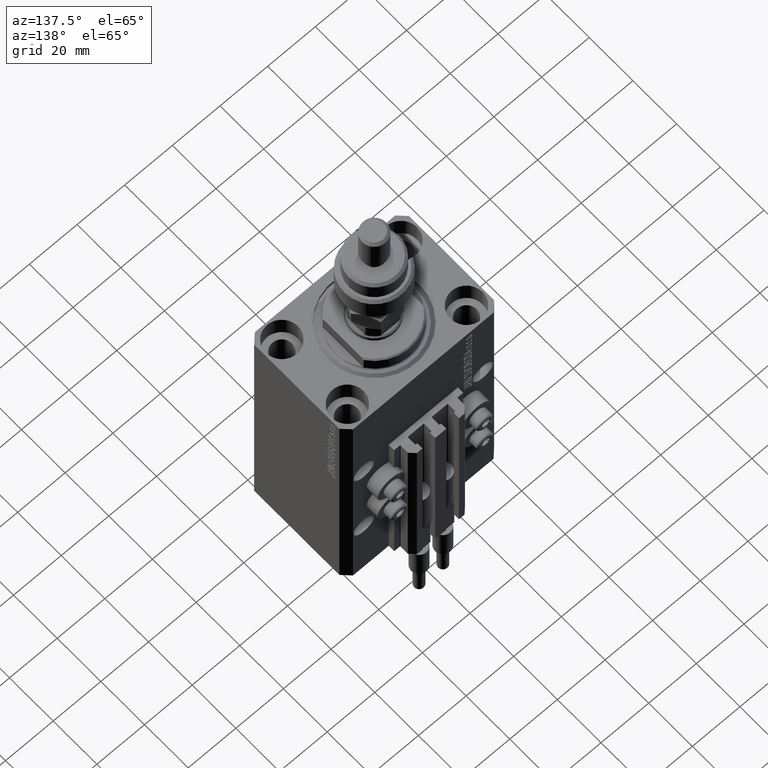
[diagram: clean part render]
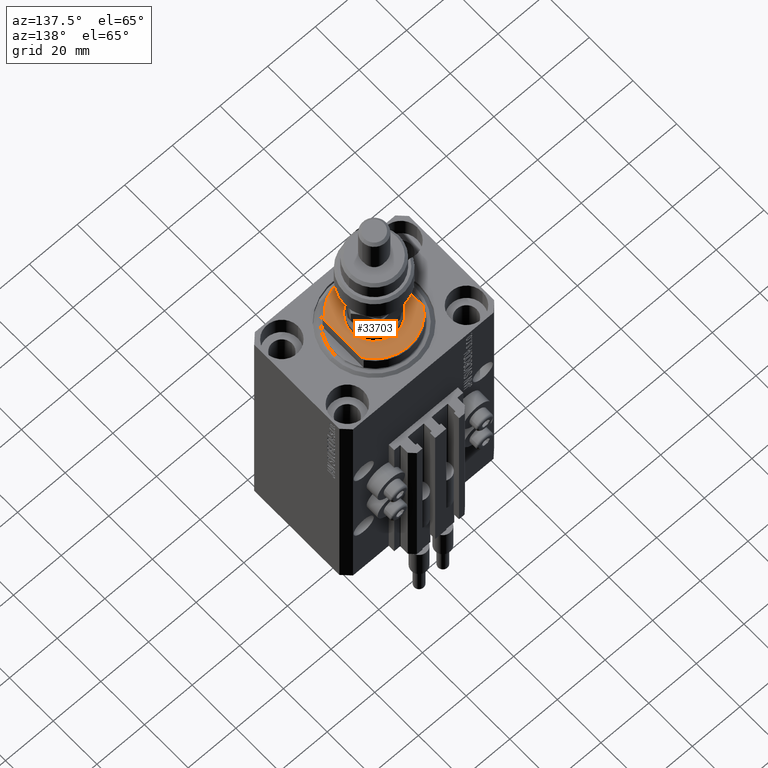
[diagram: same view with one face highlighted and labeled with its STEP entity id]
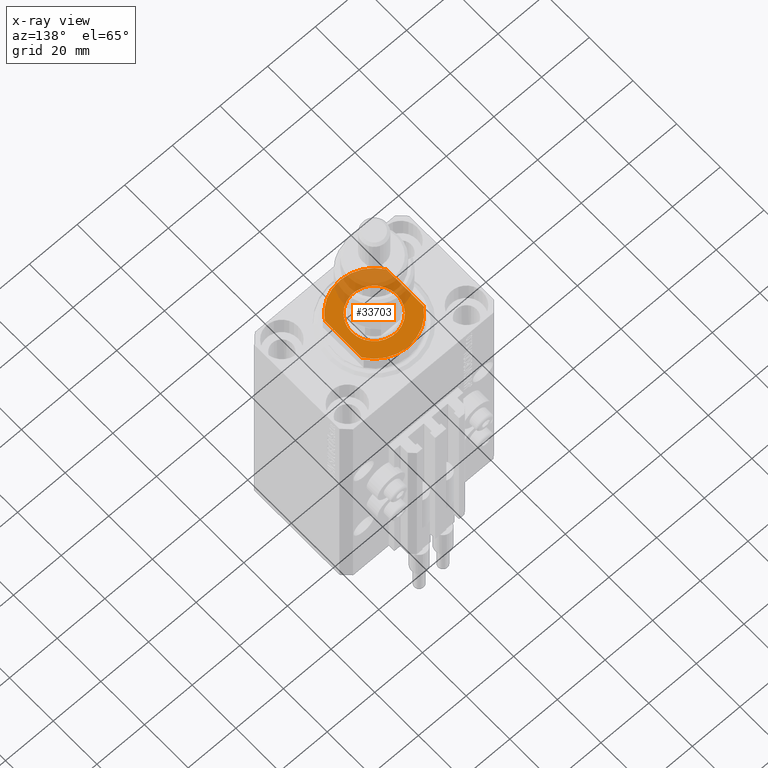
[diagram: x-ray of the same camera — body ghosted, the highlighted face saturated]
A machine part, auxiliary view. The second image highlights one B-rep face of the part: STEP entity #33703.
The next image is the same camera in x-ray: the body ghosted, the highlighted face saturated — about 34% of this face is hidden behind the body in this view.
In plain terms, the highlighted planar face has unit normal (0, 0, 1).
Its self-contained STEP definition (entity closure, byte-faithful):
#140 = VERTEX_POINT ( 'NONE', #23840 ) ;
#1214 = AXIS2_PLACEMENT_3D ( 'NONE', #11440, #35077, #26234 ) ;
#1612 = CARTESIAN_POINT ( 'NONE',  ( -13.00000000000000000, -43.08131845707602992, -6.500000000000000000 ) ) ;
#2864 = CIRCLE ( 'NONE', #1214, 15.50000000000003730 ) ;
#3542 = DIRECTION ( 'NONE',  ( 0.000000000000000000, 0.000000000000000000, -1.000000000000000000 ) ) ;
#3643 = VERTEX_POINT ( 'NONE', #35686 ) ;
#4643 = VERTEX_POINT ( 'NONE', #19017 ) ;
#4646 = VECTOR ( 'NONE', #33255, 1000.000000000000000 ) ;
#6668 = PLANE ( 'NONE',  #34629 ) ;
#10040 = CARTESIAN_POINT ( 'NONE',  ( 0.000000000000000000, 0.000000000000000000, -6.500000000000000000 ) ) ;
#10125 = EDGE_CURVE ( 'NONE', #25704, #140, #19779, .T. ) ;
#10442 = CARTESIAN_POINT ( 'NONE',  ( -13.00000000000000000, 8.440971508067139695, -6.500000000000000000 ) ) ;
#10708 = EDGE_LOOP ( 'NONE', ( #41875, #49483, #22621, #32792 ) ) ;
#11440 = CARTESIAN_POINT ( 'NONE',  ( 0.000000000000000000, 0.000000000000000000, -6.500000000000000000 ) ) ;
#14071 = CARTESIAN_POINT ( 'NONE',  ( -13.00000000000000000, -8.440971508067139695, -6.500000000000000000 ) ) ;
#14489 = CARTESIAN_POINT ( 'NONE',  ( 13.00000000000000000, -43.08131845707602992, -6.500000000000000000 ) ) ;
#14682 = DIRECTION ( 'NONE',  ( -1.000000000000000000, 0.000000000000000000, 0.000000000000000000 ) ) ;
#14695 = FACE_OUTER_BOUND ( 'NONE', #10708, .T. ) ;
#16596 = AXIS2_PLACEMENT_3D ( 'NONE', #20538, #28567, #41316 ) ;
#18837 = CARTESIAN_POINT ( 'NONE',  ( 0.000000000000000000, 0.000000000000000000, -6.500000000000000000 ) ) ;
#19017 = CARTESIAN_POINT ( 'NONE',  ( 13.00000000000000000, -8.440971508067139695, -6.500000000000000000 ) ) ;
#19779 = CIRCLE ( 'NONE', #25547, 15.50000000000003730 ) ;
#20139 = CARTESIAN_POINT ( 'NONE',  ( 0.000000000000000000, 0.000000000000000000, -6.500000000000000000 ) ) ;
#20538 = CARTESIAN_POINT ( 'NONE',  ( 0.000000000000000000, 0.000000000000000000, -6.500000000000000000 ) ) ;
#22621 = ORIENTED_EDGE ( 'NONE', *, *, #23405, .T. ) ;
#22876 = AXIS2_PLACEMENT_3D ( 'NONE', #20139, #36501, #28678 ) ;
#23405 = EDGE_CURVE ( 'NONE', #4643, #41178, #2864, .T. ) ;
#23840 = CARTESIAN_POINT ( 'NONE',  ( 13.00000000000000000, 8.440971508067139695, -6.500000000000000000 ) ) ;
#25547 = AXIS2_PLACEMENT_3D ( 'NONE', #10040, #33664, #14682 ) ;
#25704 = VERTEX_POINT ( 'NONE', #10442 ) ;
#25836 = VECTOR ( 'NONE', #38899, 1000.000000000000000 ) ;
#25848 = ORIENTED_EDGE ( 'NONE', *, *, #27076, .T. ) ;
#26234 = DIRECTION ( 'NONE',  ( -1.000000000000000000, 0.000000000000000000, 0.000000000000000000 ) ) ;
#27076 = EDGE_CURVE ( 'NONE', #33294, #3643, #42798, .T. ) ;
#27226 = EDGE_LOOP ( 'NONE', ( #25848, #40198 ) ) ;
#28567 = DIRECTION ( 'NONE',  ( -0.000000000000000000, -0.000000000000000000, 1.000000000000000000 ) ) ;
#28678 = DIRECTION ( 'NONE',  ( -1.000000000000000000, 0.000000000000000000, 0.000000000000000000 ) ) ;
#28885 = EDGE_CURVE ( 'NONE', #25704, #41178, #37159, .T. ) ;
#31513 = CIRCLE ( 'NONE', #16596, 9.500000000000015987 ) ;
#32792 = ORIENTED_EDGE ( 'NONE', *, *, #28885, .F. ) ;
#33255 = DIRECTION ( 'NONE',  ( -0.000000000000000000, -1.000000000000000000, -0.000000000000000000 ) ) ;
#33294 = VERTEX_POINT ( 'NONE', #36938 ) ;
#33664 = DIRECTION ( 'NONE',  ( 0.000000000000000000, 0.000000000000000000, -1.000000000000000000 ) ) ;
#33703 = ADVANCED_FACE ( 'NONE', ( #38344, #14695 ), #6668, .T. ) ;
#34629 = AXIS2_PLACEMENT_3D ( 'NONE', #18837, #3542, #42486 ) ;
#35077 = DIRECTION ( 'NONE',  ( 0.000000000000000000, 0.000000000000000000, -1.000000000000000000 ) ) ;
#35686 = CARTESIAN_POINT ( 'NONE',  ( 9.500000000000015987, 1.163414459189987457E-15, -6.500000000000000000 ) ) ;
#36501 = DIRECTION ( 'NONE',  ( -0.000000000000000000, -0.000000000000000000, 1.000000000000000000 ) ) ;
#36938 = CARTESIAN_POINT ( 'NONE',  ( -9.500000000000015987, 0.000000000000000000, -6.500000000000000000 ) ) ;
#37159 = LINE ( 'NONE', #1612, #4646 ) ;
#38344 = FACE_BOUND ( 'NONE', #27226, .T. ) ;
#38842 = EDGE_CURVE ( 'NONE', #3643, #33294, #31513, .T. ) ;
#38899 = DIRECTION ( 'NONE',  ( 0.000000000000000000, -1.000000000000000000, -0.000000000000000000 ) ) ;
#40198 = ORIENTED_EDGE ( 'NONE', *, *, #38842, .T. ) ;
#41178 = VERTEX_POINT ( 'NONE', #14071 ) ;
#41316 = DIRECTION ( 'NONE',  ( -1.000000000000000000, 0.000000000000000000, 0.000000000000000000 ) ) ;
#41875 = ORIENTED_EDGE ( 'NONE', *, *, #10125, .T. ) ;
#42486 = DIRECTION ( 'NONE',  ( -1.000000000000000000, 0.000000000000000000, -0.000000000000000000 ) ) ;
#42798 = CIRCLE ( 'NONE', #22876, 9.500000000000015987 ) ;
#46951 = LINE ( 'NONE', #14489, #25836 ) ;
#49483 = ORIENTED_EDGE ( 'NONE', *, *, #50518, .T. ) ;
#50518 = EDGE_CURVE ( 'NONE', #140, #4643, #46951, .T. ) ;